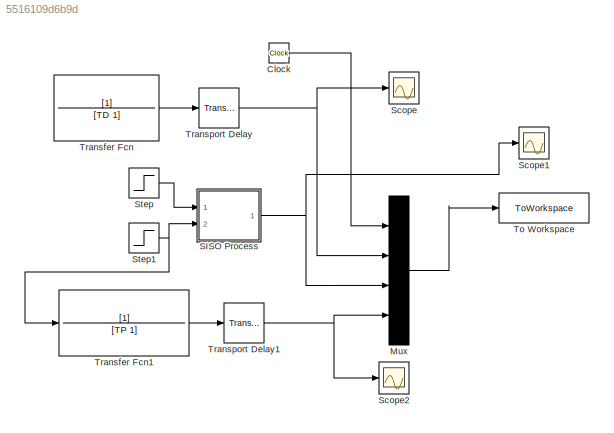
MODEL slx_5516109d6b9d
KIND model
CONFIG AbsTol = auto
CONFIG EnableMultiTasking = off
CONFIG FixedStep = 0.1
CONFIG MaxStep = auto
CONFIG MinStep = auto
CONFIG RelTol = 1e-3
CONFIG SampleTimeConstraint = Unconstrained
CONFIG SolverName = ode2
CONFIG StartTime = 0.0
CONFIG StopTime = 50
BLOCK [Clock] Clock
BLOCK [Mux] Mux
  DisplayOption = bar
  Ports = [4, 1]
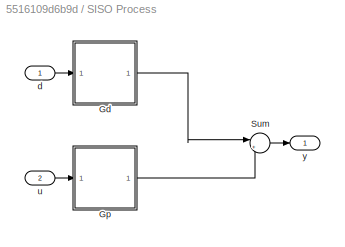
BLOCK [SubSystem] SISO Process
  Ports = [2, 1]
  RequestExecContextInheritance = off
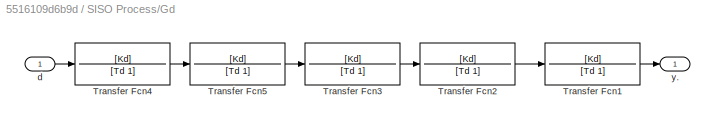
BLOCK [SubSystem] SISO Process/Gd
  Ports = [1, 1]
  RequestExecContextInheritance = off
BLOCK [TransferFcn] SISO Process/Gd/Transfer Fcn1
  Denominator = [Td 1]
  Numerator = [Kd]
BLOCK [TransferFcn] SISO Process/Gd/Transfer Fcn2
  Denominator = [Td 1]
  Numerator = [Kd]
BLOCK [TransferFcn] SISO Process/Gd/Transfer Fcn3
  Denominator = [Td 1]
  Numerator = [Kd]
BLOCK [TransferFcn] SISO Process/Gd/Transfer Fcn4
  Denominator = [Td 1]
  Numerator = [Kd]
BLOCK [TransferFcn] SISO Process/Gd/Transfer Fcn5
  Denominator = [Td 1]
  Numerator = [Kd]
BLOCK [Inport] SISO Process/Gd/d
BLOCK [Outport] SISO Process/Gd/y.
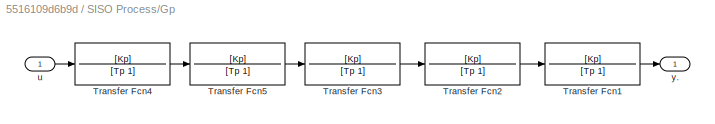
BLOCK [SubSystem] SISO Process/Gp
  Ports = [1, 1]
  RequestExecContextInheritance = off
BLOCK [TransferFcn] SISO Process/Gp/Transfer Fcn1
  Denominator = [Tp 1]
  Numerator = [Kp]
BLOCK [TransferFcn] SISO Process/Gp/Transfer Fcn2
  Denominator = [Tp 1]
  Numerator = [Kp]
BLOCK [TransferFcn] SISO Process/Gp/Transfer Fcn3
  Denominator = [Tp 1]
  Numerator = [Kp]
BLOCK [TransferFcn] SISO Process/Gp/Transfer Fcn4
  Denominator = [Tp 1]
  Numerator = [Kp]
BLOCK [TransferFcn] SISO Process/Gp/Transfer Fcn5
  Denominator = [Tp 1]
  Numerator = [Kp]
BLOCK [Inport] SISO Process/Gp/u
BLOCK [Outport] SISO Process/Gp/y.
BLOCK [Sum] SISO Process/Sum
  Inputs = |++
  Ports = [2, 1]
BLOCK [Inport] SISO Process/d
BLOCK [Inport] SISO Process/u
  Port = 2
BLOCK [Outport] SISO Process/y
BLOCK [Scope] Scope
  Floating = off
  NumInputPorts = 1
  Ports = [1]
  ScopeSpecificationString = Simulink.scopes.TimeScopeBlockCfg('CurrentConfiguration', extmgr.ConfigurationSet(extmgr.Configuration('Core','General UI',true),extmgr.Configuration('Core','Source UI',true),extmgr.Configuration('Sources','WiredSimulink',true),extmgr.Configuration('Visuals','Time Domain',true,'SerializedDisplays',{struct('MinYLimReal','-1.00000','MaxYLimReal','1.00000','YLabelReal','','MinYLimMag','0.00000','MaxY...<+1335ch>
BLOCK [Scope] Scope1
  Floating = off
  NumInputPorts = 1
  Ports = [1]
  ScopeSpecificationString = Simulink.scopes.TimeScopeBlockCfg('CurrentConfiguration', extmgr.ConfigurationSet(extmgr.Configuration('Core','General UI',true),extmgr.Configuration('Core','Source UI',true),extmgr.Configuration('Sources','WiredSimulink',true,'DataLoggingVariableName','ScopeData1'),extmgr.Configuration('Visuals','Time Domain',true,'SerializedDisplays',{struct('MinYLimReal','-0.125','MaxYLimReal','1.125','YLabelRe...<+1390ch>
BLOCK [Scope] Scope2
  Floating = off
  NumInputPorts = 1
  Ports = [1]
  ScopeSpecificationString = Simulink.scopes.TimeScopeBlockCfg('CurrentConfiguration', extmgr.ConfigurationSet(extmgr.Configuration('Core','General UI',true),extmgr.Configuration('Core','Source UI',true),extmgr.Configuration('Sources','WiredSimulink',true,'DataLoggingVariableName','ScopeData2'),extmgr.Configuration('Visuals','Time Domain',true,'SerializedDisplays',{struct('MinYLimReal','-0.125','MaxYLimReal','1.125','YLabelRe...<+1363ch>
BLOCK [Step] Step
  After = 0
  SampleTime = 0
  Time = 0
BLOCK [Step] Step1
  SampleTime = 0
BLOCK [ToWorkspace] To Workspace
  FixptAsFi = on
  MaxDataPoints = inf
  Ports = [1]
  SampleTime = -1
  VariableName = Y
BLOCK [TransferFcn] Transfer Fcn
  Denominator = [TD 1]
BLOCK [TransferFcn] Transfer Fcn1
  Denominator = [TP 1]
BLOCK [TransportDelay] Transport Delay
  DelayTime = ThetaD
  Ports = [1, 1]
BLOCK [TransportDelay] Transport Delay1
  DelayTime = ThetaP
  Ports = [1, 1]
LINE Clock:1 -> Mux:1
LINE Mux:1 -> To Workspace:1
LINE SISO Process/Gd/Transfer Fcn1:1 -> SISO Process/Gd/y.:1
LINE SISO Process/Gd/Transfer Fcn2:1 -> SISO Process/Gd/Transfer Fcn1:1
LINE SISO Process/Gd/Transfer Fcn3:1 -> SISO Process/Gd/Transfer Fcn2:1
LINE SISO Process/Gd/Transfer Fcn4:1 -> SISO Process/Gd/Transfer Fcn5:1
LINE SISO Process/Gd/Transfer Fcn5:1 -> SISO Process/Gd/Transfer Fcn3:1
LINE SISO Process/Gd/d:1 -> SISO Process/Gd/Transfer Fcn4:1
LINE SISO Process/Gd:1 -> SISO Process/Sum:1
LINE SISO Process/Gp/Transfer Fcn1:1 -> SISO Process/Gp/y.:1
LINE SISO Process/Gp/Transfer Fcn2:1 -> SISO Process/Gp/Transfer Fcn1:1
LINE SISO Process/Gp/Transfer Fcn3:1 -> SISO Process/Gp/Transfer Fcn2:1
LINE SISO Process/Gp/Transfer Fcn4:1 -> SISO Process/Gp/Transfer Fcn5:1
LINE SISO Process/Gp/Transfer Fcn5:1 -> SISO Process/Gp/Transfer Fcn3:1
LINE SISO Process/Gp/u:1 -> SISO Process/Gp/Transfer Fcn4:1
LINE SISO Process/Gp:1 -> SISO Process/Sum:2
LINE SISO Process/Sum:1 -> SISO Process/y:1
LINE SISO Process/d:1 -> SISO Process/Gd:1
LINE SISO Process/u:1 -> SISO Process/Gp:1
NET SISO Process:1 -> Mux:3, Scope1:1
NET Step1:1 -> SISO Process:2, Transfer Fcn1:1
LINE Step:1 -> SISO Process:1
LINE Transfer Fcn1:1 -> Transport Delay1:1
LINE Transfer Fcn:1 -> Transport Delay:1
NET Transport Delay1:1 -> Mux:4, Scope2:1
NET Transport Delay:1 -> Mux:2, Scope:1
note: NET lines group one-source signal fan-out (src -> all destinations, sorted); 1:1 wires keep LINE
